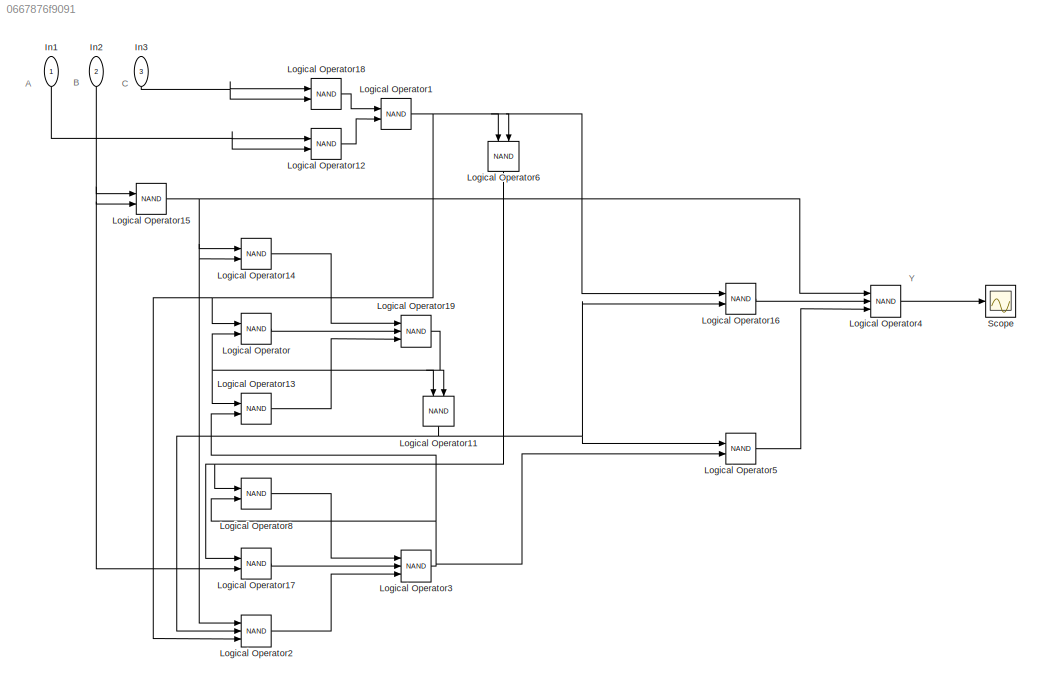
MODEL slx_0667876f9091
KIND model
CONFIG AbsTol = auto
CONFIG EnableMultiTasking = off
CONFIG FixedStep = auto
CONFIG MaxStep = auto
CONFIG MinStep = auto
CONFIG RelTol = 1e-3
CONFIG SampleTimeConstraint = Unconstrained
CONFIG Solver = VariableStepAuto
CONFIG SolverName = VariableStepAuto
CONFIG StartTime = 0.0
CONFIG StopTime = 10.0
BLOCK [Inport] In1
  IconDisplay = Port number
  OutDataTypeStr = boolean
  OutMax = 0
  OutMin = 0
BLOCK [Inport] In2
  IconDisplay = Port number
  OutDataTypeStr = boolean
  OutMax = 1
  OutMin = 1
  Port = 2
BLOCK [Inport] In3
  IconDisplay = Port number
  OutDataTypeStr = boolean
  OutMax = 1
  OutMin = 1
  Port = 3
BLOCK [Logic] Logical Operator
  AllPortsSameDT = off
  Operator = NAND
  OutDataTypeStr = boolean
  Ports = [2, 1]
BLOCK [Logic] Logical Operator1
  AllPortsSameDT = off
  Operator = NAND
  OutDataTypeStr = boolean
  Ports = [2, 1]
BLOCK [Logic] Logical Operator11
  AllPortsSameDT = off
  Operator = NAND
  OutDataTypeStr = boolean
  Ports = [2, 1]
BLOCK [Logic] Logical Operator12
  AllPortsSameDT = off
  Operator = NAND
  OutDataTypeStr = boolean
  Ports = [2, 1]
BLOCK [Logic] Logical Operator13
  AllPortsSameDT = off
  Operator = NAND
  OutDataTypeStr = boolean
  Ports = [2, 1]
BLOCK [Logic] Logical Operator14
  AllPortsSameDT = off
  Operator = NAND
  OutDataTypeStr = boolean
  Ports = [2, 1]
BLOCK [Logic] Logical Operator15
  AllPortsSameDT = off
  Operator = NAND
  OutDataTypeStr = boolean
  Ports = [2, 1]
BLOCK [Logic] Logical Operator16
  AllPortsSameDT = off
  Operator = NAND
  OutDataTypeStr = boolean
  Ports = [2, 1]
BLOCK [Logic] Logical Operator17
  AllPortsSameDT = off
  Operator = NAND
  OutDataTypeStr = boolean
  Ports = [2, 1]
BLOCK [Logic] Logical Operator18
  AllPortsSameDT = off
  Operator = NAND
  OutDataTypeStr = boolean
  Ports = [2, 1]
BLOCK [Logic] Logical Operator19
  AllPortsSameDT = off
  Inputs = 3
  Operator = NAND
  OutDataTypeStr = boolean
  Ports = [3, 1]
BLOCK [Logic] Logical Operator2
  AllPortsSameDT = off
  Inputs = 3
  Operator = NAND
  OutDataTypeStr = boolean
  Ports = [3, 1]
BLOCK [Logic] Logical Operator3
  AllPortsSameDT = off
  Inputs = 3
  Operator = NAND
  OutDataTypeStr = boolean
  Ports = [3, 1]
BLOCK [Logic] Logical Operator4
  AllPortsSameDT = off
  Inputs = 3
  Operator = NAND
  OutDataTypeStr = boolean
  Ports = [3, 1]
BLOCK [Logic] Logical Operator5
  AllPortsSameDT = off
  Operator = NAND
  OutDataTypeStr = boolean
  Ports = [2, 1]
BLOCK [Logic] Logical Operator6
  AllPortsSameDT = off
  Operator = NAND
  OutDataTypeStr = boolean
  Ports = [2, 1]
BLOCK [Logic] Logical Operator8
  AllPortsSameDT = off
  Operator = NAND
  OutDataTypeStr = boolean
  Ports = [2, 1]
BLOCK [Scope] Scope
  Floating = off
  NumInputPorts = 1
  Ports = [1]
  ScopeSpecificationString = Simulink.scopes.TimeScopeBlockCfg('CurrentConfiguration', extmgr.ConfigurationSet(extmgr.Configuration('Core','General UI',true),extmgr.Configuration('Core','Source UI',true),extmgr.Configuration('Sources','WiredSimulink',true),extmgr.Configuration('Visuals','Time Domain',true),extmgr.Configuration('Tools','Plot Navigation',true),extmgr.Configuration('Tools','Measurements',true)),'Version','2018b'...<+1ch>
ANNOTATION (root): A
ANNOTATION (root): B
ANNOTATION (root): C
ANNOTATION (root): Y
NET In1:1 -> Logical Operator12:1, Logical Operator12:2
NET In2:1 -> Logical Operator15:1, Logical Operator15:2, Logical Operator17:2
NET In3:1 -> Logical Operator18:1, Logical Operator18:2
NET Logical Operator11:1 -> Logical Operator16:2, Logical Operator2:2, Logical Operator5:1
LINE Logical Operator12:1 -> Logical Operator1:2
LINE Logical Operator13:1 -> Logical Operator19:3
LINE Logical Operator14:1 -> Logical Operator19:1
NET Logical Operator15:1 -> Logical Operator14:1, Logical Operator14:2, Logical Operator2:1, Logical Operator4:1
LINE Logical Operator16:1 -> Logical Operator4:2
LINE Logical Operator17:1 -> Logical Operator3:2
LINE Logical Operator18:1 -> Logical Operator1:1
NET Logical Operator19:1 -> Logical Operator11:1, Logical Operator11:2, Logical Operator13:1, Logical Operator:2
NET Logical Operator1:1 -> Logical Operator16:1, Logical Operator2:3, Logical Operator6:1, Logical Operator6:2, Logical Operator:1
LINE Logical Operator2:1 -> Logical Operator3:3
NET Logical Operator3:1 -> Logical Operator13:2, Logical Operator5:2, Logical Operator8:2
LINE Logical Operator4:1 -> Scope:1
LINE Logical Operator5:1 -> Logical Operator4:3
NET Logical Operator6:1 -> Logical Operator17:1, Logical Operator8:1
LINE Logical Operator8:1 -> Logical Operator3:1
LINE Logical Operator:1 -> Logical Operator19:2
note: NET lines group one-source signal fan-out (src -> all destinations, sorted); 1:1 wires keep LINE
